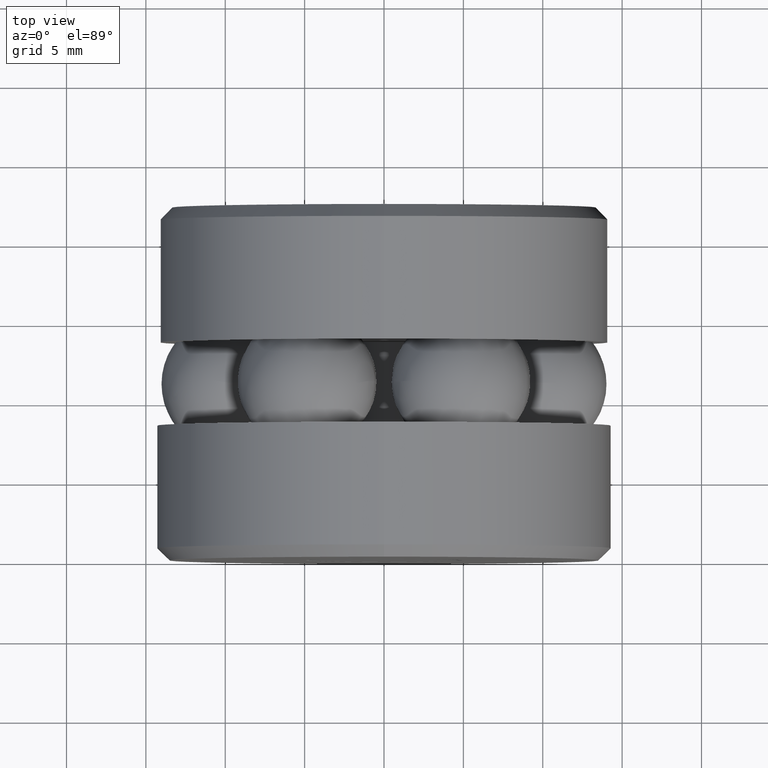
[diagram: clean part render]
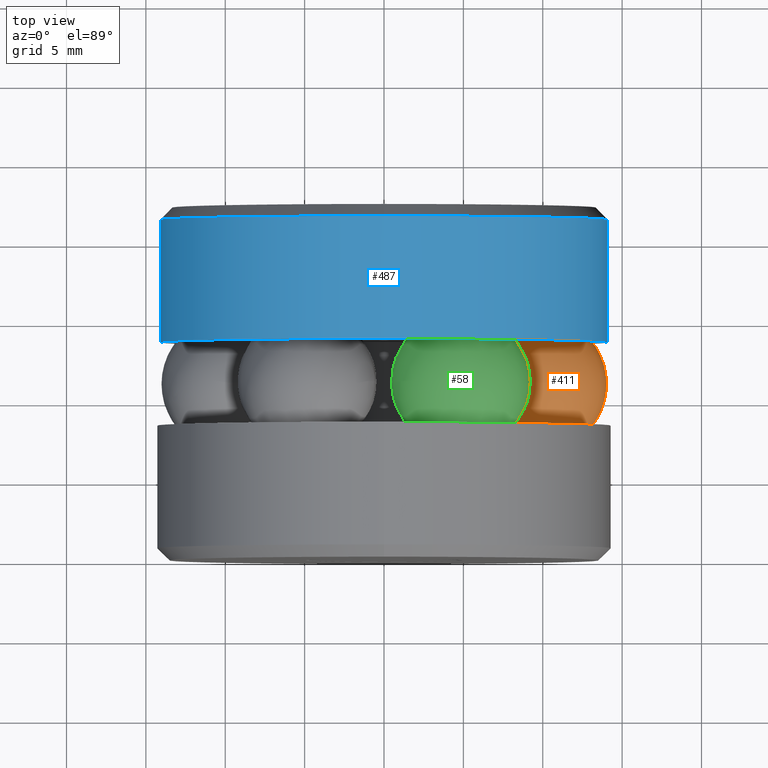
[diagram: same view with three faces highlighted in distinct colors, each labeled with its STEP entity id]
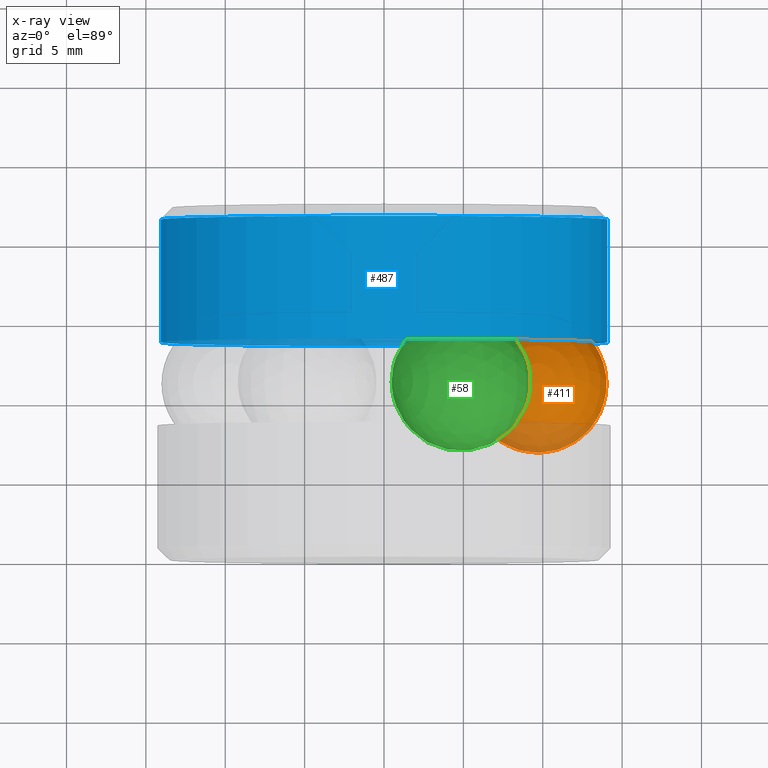
[diagram: x-ray of the same camera — body ghosted, the three highlighted faces saturated]
A machine part, top view with three faces highlighted in distinct colors.
The next image is the same camera in x-ray (body ghosted, the three faces saturated) — at least one of them is partly hidden behind the body in this view.
Their STEP definitions:

[orange] entity #411 — the highlighted spherical surface has radius 4.3688 mm.
#166 = SPHERICAL_SURFACE ( 'NONE', #188, 0.1720000000000000400 ) ;
#188 = AXIS2_PLACEMENT_3D ( 'NONE', #251, #537, #474 ) ;
#251 = CARTESIAN_POINT ( 'NONE',  ( 0.3814999999999998900, 0.4375000000000000000, -2.664000261537309900E-015 ) ) ;
#411 = ADVANCED_FACE ( 'NONE', ( ), #166, .T. ) ;
#474 = DIRECTION ( 'NONE',  ( -1.000000000000000000, 0.0000000000000000000, 6.982962677686266700E-015 ) ) ;
#537 = DIRECTION ( 'NONE',  ( 6.982962677686266700E-015, -0.0000000000000000000, 1.000000000000000000 ) ) ;

[blue] entity #487 — the highlighted cylindrical surface (bore or boss wall) has radius 14.1097 mm, axis along (-0, 1, -0).
#2 = EDGE_LOOP ( 'NONE', ( #476 ) ) ;
#5 = CIRCLE ( 'NONE', #323, 0.5554999999999998800 ) ;
#15 = FACE_OUTER_BOUND ( 'NONE', #185, .T. ) ;
#42 = CARTESIAN_POINT ( 'NONE',  ( 0.0000000000000000000, 0.8449999999999993100, 0.5555000000000001000 ) ) ;
#63 = VERTEX_POINT ( 'NONE', #42 ) ;
#143 = ORIENTED_EDGE ( 'NONE', *, *, #206, .F. ) ;
#154 = FACE_OUTER_BOUND ( 'NONE', #2, .T. ) ;
#185 = EDGE_LOOP ( 'NONE', ( #143 ) ) ;
#206 = EDGE_CURVE ( 'NONE', #63, #63, #348, .T. ) ;
#207 = AXIS2_PLACEMENT_3D ( 'NONE', #547, #512, #511 ) ;
#212 = DIRECTION ( 'NONE',  ( 0.0000000000000000000, 0.0000000000000000000, 1.000000000000000000 ) ) ;
#214 = DIRECTION ( 'NONE',  ( -0.0000000000000000000, 1.000000000000000000, -0.0000000000000000000 ) ) ;
#216 = CARTESIAN_POINT ( 'NONE',  ( 0.0000000000000000000, 0.5406999999999999600, 0.0000000000000000000 ) ) ;
#246 = EDGE_CURVE ( 'NONE', #407, #407, #5, .T. ) ;
#323 = AXIS2_PLACEMENT_3D ( 'NONE', #216, #214, #212 ) ;
#348 = CIRCLE ( 'NONE', #207, 0.5555000000000001000 ) ;
#407 = VERTEX_POINT ( 'NONE', #504 ) ;
#418 = AXIS2_PLACEMENT_3D ( 'NONE', #442, #434, #519 ) ;
#434 = DIRECTION ( 'NONE',  ( -0.0000000000000000000, 1.000000000000000000, -0.0000000000000000000 ) ) ;
#442 = CARTESIAN_POINT ( 'NONE',  ( 0.0000000000000000000, 0.0000000000000000000, 0.0000000000000000000 ) ) ;
#476 = ORIENTED_EDGE ( 'NONE', *, *, #246, .T. ) ;
#487 = ADVANCED_FACE ( 'NONE', ( #154, #15 ), #549, .T. ) ;
#504 = CARTESIAN_POINT ( 'NONE',  ( 0.0000000000000000000, 0.5406999999999999600, 0.5554999999999998800 ) ) ;
#511 = DIRECTION ( 'NONE',  ( 0.0000000000000000000, 0.0000000000000000000, 1.000000000000000000 ) ) ;
#512 = DIRECTION ( 'NONE',  ( -0.0000000000000000000, 1.000000000000000000, -0.0000000000000000000 ) ) ;
#519 = DIRECTION ( 'NONE',  ( 0.0000000000000000000, 0.0000000000000000000, 1.000000000000000000 ) ) ;
#547 = CARTESIAN_POINT ( 'NONE',  ( 0.0000000000000000000, 0.8449999999999993100, 0.0000000000000000000 ) ) ;
#549 = CYLINDRICAL_SURFACE ( 'NONE', #418, 0.5554999999999999900 ) ;

[green] entity #58 — the highlighted spherical surface has radius 4.3688 mm.
#51 = SPHERICAL_SURFACE ( 'NONE', #412, 0.1720000000000000400 ) ;
#58 = ADVANCED_FACE ( 'NONE', ( ), #51, .T. ) ;
#127 = DIRECTION ( 'NONE',  ( -0.8660254037844363800, 0.0000000000000000000, 0.5000000000000040000 ) ) ;
#205 = DIRECTION ( 'NONE',  ( -0.5000000000000040000, 0.0000000000000000000, -0.8660254037844363800 ) ) ;
#306 = CARTESIAN_POINT ( 'NONE',  ( 0.1907500000000015000, 0.4375000000000000000, 0.3303886915437624400 ) ) ;
#412 = AXIS2_PLACEMENT_3D ( 'NONE', #306, #127, #205 ) ;